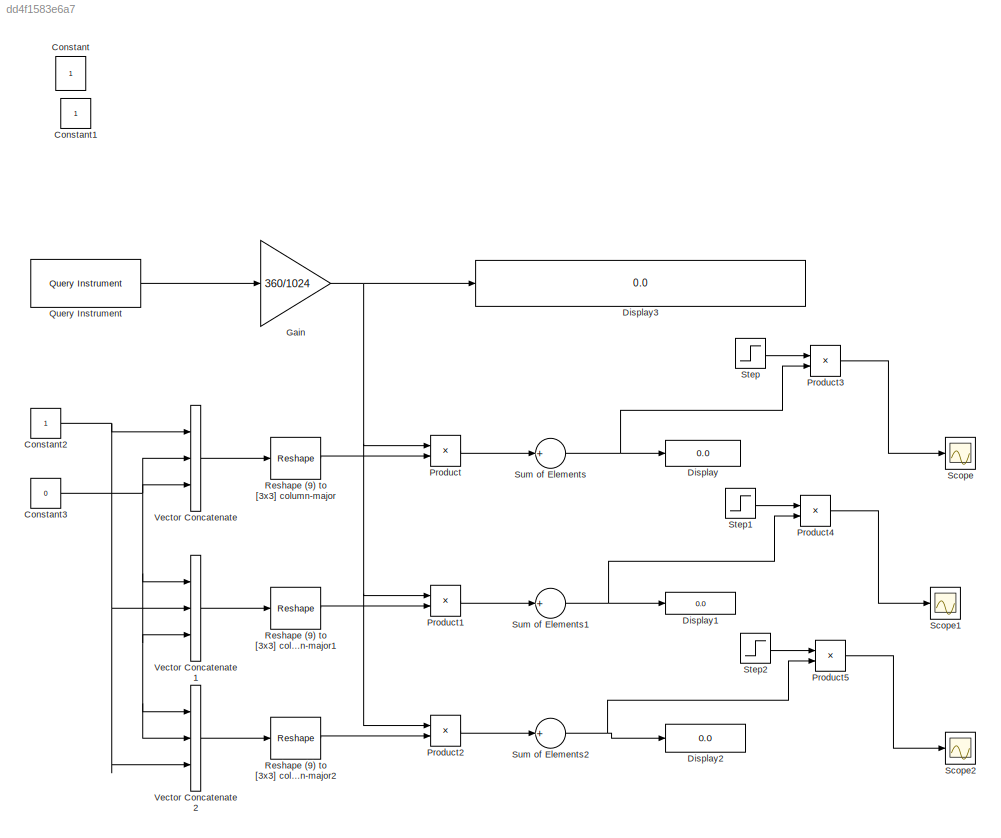
MODEL slx_dd4f1583e6a7
KIND model
CONFIG AbsTol = auto
CONFIG FixedStep = auto
CONFIG MaxStep = auto
CONFIG MinStep = auto
CONFIG RelTol = 1e-3
CONFIG SampleTimeConstraint = Unconstrained
CONFIG Solver = ode45
CONFIG SolverMode = SingleTasking
CONFIG SolverName = ode45
CONFIG StartTime = 0.0
CONFIG StopTime = inf
BLOCK [Constant] Constant
  IOType = siggen
  SampleTime = 1
  VectorParams1D = off
BLOCK [Constant] Constant1
  IOType = siggen
BLOCK [Constant] Constant2
BLOCK [Constant] Constant3
  Value = 0
BLOCK [Display] Display
  Decimation = 1
  Ports = [1]
BLOCK [Display] Display1
  Decimation = 1
  Ports = [1]
BLOCK [Display] Display2
  Decimation = 1
  Ports = [1]
BLOCK [Display] Display3
  Decimation = 1
  Ports = [1]
BLOCK [Gain] Gain
  Gain = 360/1024
  OutDataTypeStr = Inherit: Inherit via internal rule
  ParamDataTypeStr = Inherit: Inherit via internal rule
  SaturateOnIntegerOverflow = off
BLOCK [Product] Product
  InputSameDT = off
  OutDataTypeStr = Inherit: Inherit via internal rule
  Ports = [2, 1]
  RndMeth = Floor
  SaturateOnIntegerOverflow = off
BLOCK [Product] Product1
  InputSameDT = off
  OutDataTypeStr = Inherit: Inherit via internal rule
  Ports = [2, 1]
  RndMeth = Floor
  SaturateOnIntegerOverflow = off
BLOCK [Product] Product2
  InputSameDT = off
  OutDataTypeStr = Inherit: Inherit via internal rule
  Ports = [2, 1]
  RndMeth = Floor
  SaturateOnIntegerOverflow = off
BLOCK [Product] Product3
  InputSameDT = off
  OutDataTypeStr = Inherit: Inherit via internal rule
  Ports = [2, 1]
  RndMeth = Floor
  SaturateOnIntegerOverflow = off
BLOCK [Product] Product4
  InputSameDT = off
  OutDataTypeStr = Inherit: Inherit via internal rule
  Ports = [2, 1]
  RndMeth = Floor
  SaturateOnIntegerOverflow = off
BLOCK [Product] Product5
  InputSameDT = off
  OutDataTypeStr = Inherit: Inherit via internal rule
  Ports = [2, 1]
  RndMeth = Floor
  SaturateOnIntegerOverflow = off
BLOCK [Reference] Query Instrument  REF=instrumentlib/Query Instrument
  Ports = [0, 1]
  SourceBlock = instrumentlib/Query Instrument
  SourceType = queryinstrument
  afterOutputAction = Repeat query for new data
  asciiFormatting = ',%d,%d,%dr'
  baudRate = 9600
  boardIndex = 0
  byteOrder = Little endian
  chassisIndex = 0
  enableFrames = on
  frameSize = 3
  gpibVendor = Agilent Technologies
  initAction = None
  initCommand = 'DATA:SOURCE CH1'
  initFunction = get
  inputBufferSize = 1000
  isWorkspaceObject = off
  logicalAddress = 0
  precision = 8-bit integer
  primaryAddress = 1
  protocol = Serial
  queryCommand = '1r'
  removeBytes = off
  responseFormat = ASCII
  sampleTime = 100
  secondaryAddress = 0
  serialPort = COM4
  tcpRemoteHost = '127.0.0.1'
  tcpRemotePort = 4500
  timeout = 1
  udpRemoteHost = '127.0.0.1'
  udpRemotePort = 9090
  usbBoardIndex = 0
  usbManufID = 0
  usbModelCode = 0
  usbSerialNumber = 0
  valuesToRead = 1
  visaSerialPort = 0
  visaTCPBoardIndex = 0
  visaTCPRemoteHost = '127.0.0.1'
  visaVendor = Agilent
  wsVariableName = puerto
BLOCK [Reshape] Reshape (9) to [3x3] column-major
  OutputDimensionality = Column vector (2-D)
  OutputDimensions = [1,3]
  Ports = [1, 1]
BLOCK [Reshape] Reshape (9) to [3x3] column-major1
  OutputDimensionality = Column vector (2-D)
  OutputDimensions = [1,3]
  Ports = [1, 1]
BLOCK [Reshape] Reshape (9) to [3x3] column-major2
  OutputDimensionality = Column vector (2-D)
  OutputDimensions = [1,3]
  Ports = [1, 1]
BLOCK [Scope] Scope
  DataFormat = StructureWithTime
  Decimation = 1
  Grid = on
  LimitDataPoints = on
  MaxDataPoints = 5000
  NumInputPorts = 1
  Ports = [1]
  SampleInput = off
  SampleTime = -1
  SaveName = ScopeData
  SaveToWorkspace = off
  ShowLegends = off
  TickLabels = OneTimeTick
  TimeRange = auto
  YMax = 360
  YMin = 0
  ZoomMode = on
BLOCK [Scope] Scope1
  DataFormat = StructureWithTime
  Decimation = 1
  Grid = on
  LimitDataPoints = on
  MaxDataPoints = 5000
  NumInputPorts = 1
  Ports = [1]
  SampleInput = off
  SampleTime = -1
  SaveName = ScopeData1
  SaveToWorkspace = off
  ShowLegends = off
  TickLabels = OneTimeTick
  TimeRange = auto
  YMax = 460.35156
  YMin = 260.35156
  ZoomMode = on
BLOCK [Scope] Scope2
  DataFormat = StructureWithTime
  Decimation = 1
  Grid = on
  LimitDataPoints = on
  MaxDataPoints = 5000
  NumInputPorts = 1
  Ports = [1]
  SampleInput = off
  SampleTime = -1
  SaveName = ScopeData2
  SaveToWorkspace = off
  ShowLegends = off
  TickLabels = OneTimeTick
  TimeRange = auto
  YMax = 460.35156
  YMin = 260.35156
  ZoomMode = on
BLOCK [Step] Step
  SampleTime = 0
  Time = 0.01
BLOCK [Step] Step1
  SampleTime = 0
  Time = 0.01
BLOCK [Step] Step2
  SampleTime = 0
  Time = 0.01
BLOCK [Sum] Sum of Elements
  InputSameDT = off
  Inputs = +
  OutDataTypeStr = Inherit: Inherit via internal rule
  Ports = [1, 1]
  SaturateOnIntegerOverflow = off
BLOCK [Sum] Sum of Elements1
  InputSameDT = off
  Inputs = +
  OutDataTypeStr = Inherit: Inherit via internal rule
  Ports = [1, 1]
  SaturateOnIntegerOverflow = off
BLOCK [Sum] Sum of Elements2
  InputSameDT = off
  Inputs = +
  OutDataTypeStr = Inherit: Inherit via internal rule
  Ports = [1, 1]
  SaturateOnIntegerOverflow = off
BLOCK [Concatenate] Vector Concatenate
  NumInputs = 3
  Ports = [3, 1]
BLOCK [Concatenate] Vector Concatenate1
  NumInputs = 3
  Ports = [3, 1]
BLOCK [Concatenate] Vector Concatenate2
  NumInputs = 3
  Ports = [3, 1]
NET Constant2:1 -> Vector Concatenate1:2, Vector Concatenate2:3, Vector Concatenate:1
NET Constant3:1 -> Vector Concatenate1:1, Vector Concatenate1:3, Vector Concatenate2:1, Vector Concatenate2:2, Vector Concatenate:2, Vector Concatenate:3
NET Gain:1 -> Display3:1, Product1:1, Product2:1, Product:1
LINE Product1:1 -> Sum of Elements1:1
LINE Product2:1 -> Sum of Elements2:1
LINE Product3:1 -> Scope:1
LINE Product4:1 -> Scope1:1
LINE Product5:1 -> Scope2:1
LINE Product:1 -> Sum of Elements:1
LINE Query Instrument:1 -> Gain:1
LINE Reshape (9) to [3x3] column-major1:1 -> Product1:2
LINE Reshape (9) to [3x3] column-major2:1 -> Product2:2
LINE Reshape (9) to [3x3] column-major:1 -> Product:2
LINE Step1:1 -> Product4:1
LINE Step2:1 -> Product5:1
LINE Step:1 -> Product3:1
NET Sum of Elements1:1 -> Display1:1, Product4:2
NET Sum of Elements2:1 -> Display2:1, Product5:2
NET Sum of Elements:1 -> Display:1, Product3:2
LINE Vector Concatenate1:1 -> Reshape (9) to [3x3] column-major1:1
LINE Vector Concatenate2:1 -> Reshape (9) to [3x3] column-major2:1
LINE Vector Concatenate:1 -> Reshape (9) to [3x3] column-major:1
note: NET lines group one-source signal fan-out (src -> all destinations, sorted); 1:1 wires keep LINE
